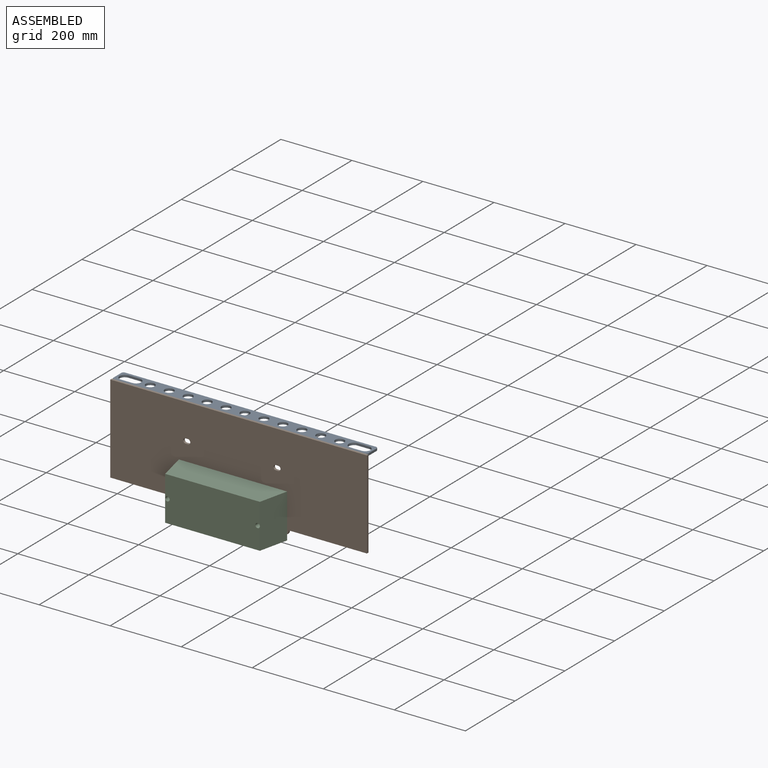
[diagram: assembled view]
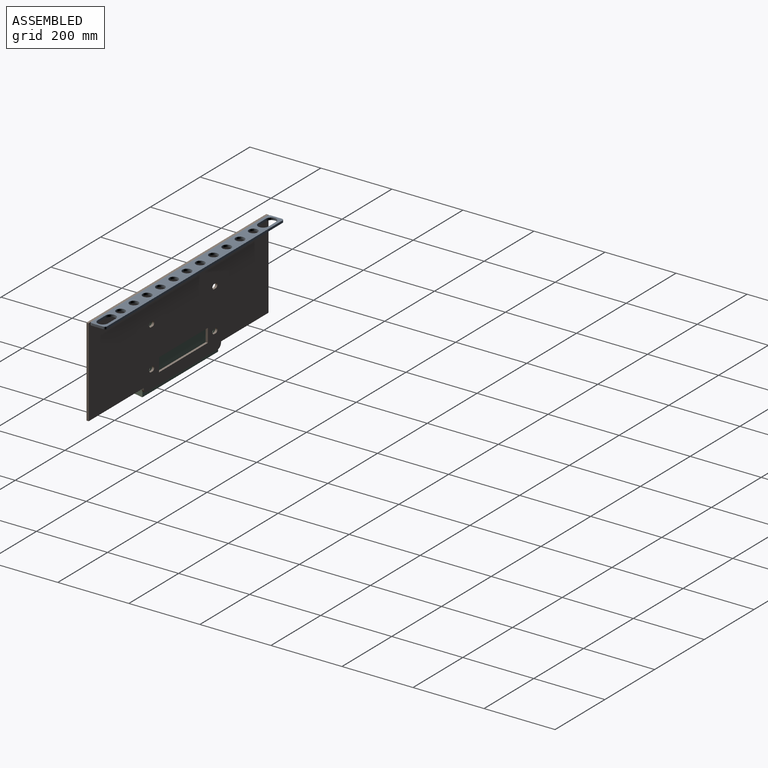
[diagram: assembled view, second angle]
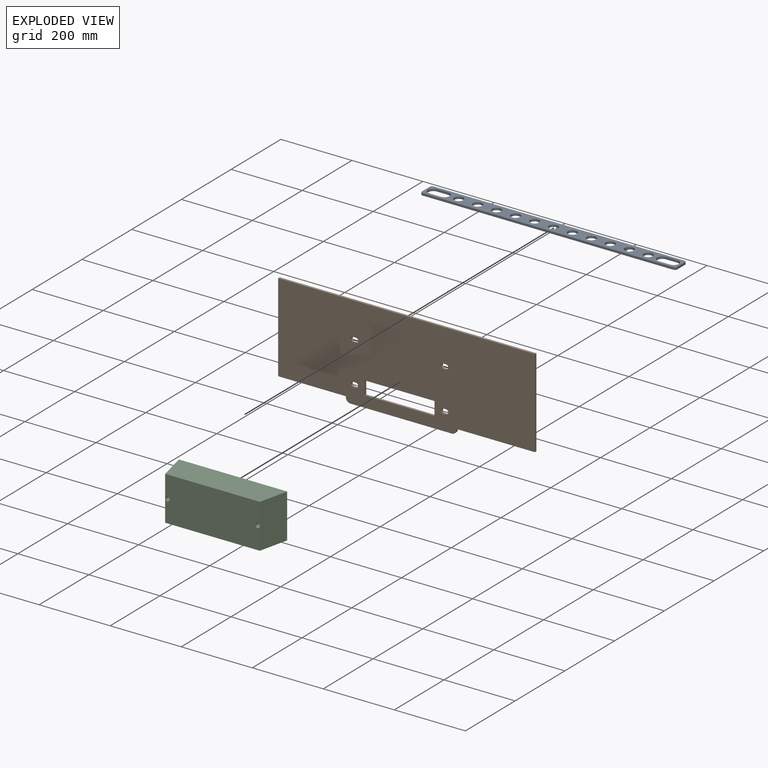
[diagram: exploded view]
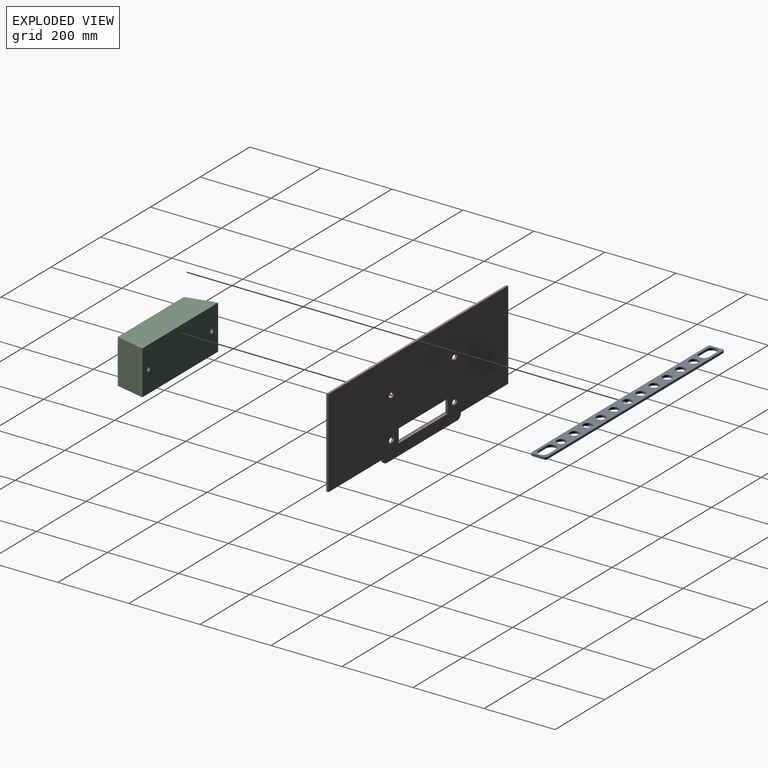
[diagram: exploded view, second angle]
ASSEMBLY  parts=3 mates=6
PART A: 29 faces, bbox 718.8x44.5x6.4 mm
  f0: plane 706.12x6.35mm, normal (0,-1,0), area 4483.9mm2, adj f7,f8,f26,f27
  f1: plane 31.75x6.35mm, normal (1,0,0), area 201.6mm2, adj f7,f8,f27,f28
  f2: plane 31.75x6.35mm, normal (0,1,0), area 201.6mm2, adj f3,f5,f7,f8
  f3: cylinder r=14.61mm len=29.21mm, axis (0,0,-1), area 291.4mm2, adj f2,f4,f7,f8
  f4: plane 31.75x6.35mm, normal (0,-1,0), area 201.6mm2, adj f3,f5,f7,f8
  f5: cylinder r=14.61mm len=29.21mm, axis (0,0,-1), area 291.4mm2, adj f2,f4,f7,f8
  f6: plane 706.12x6.35mm, normal (0,1,0), area 4483.9mm2, adj f7,f8,f25,f28
  f7: plane 718.82x44.45mm, normal (0,0,1), area 23148.1mm2, adj f0,f1,f2,f3,f4,f5,f6,f9
  f8: plane 718.82x44.45mm, normal (0,0,-1), area 23148.1mm2, adj f0,f1,f2,f3,f4,f5,f6,f9
  f9: cylinder r=12.7mm len=25.4mm, axis (0,0,1), area 506.7mm2, adj f7,f8
  f10: cylinder r=12.7mm len=25.4mm, axis (0,0,1), area 506.7mm2, adj f7,f8
  f11: cylinder r=12.7mm len=25.4mm, axis (0,0,1), area 506.7mm2, adj f7,f8
  f12: cylinder r=12.7mm len=25.4mm, axis (0,0,1), area 506.7mm2, adj f7,f8
  f13: cylinder r=12.7mm len=25.4mm, axis (0,0,1), area 506.7mm2, adj f7,f8
  f14: cylinder r=12.7mm len=25.4mm, axis (0,0,1), area 506.7mm2, adj f7,f8
  f15: plane 31.75x6.35mm, normal (-1,0,0), area 201.6mm2, adj f7,f8,f25,f26
  f16: plane 31.75x6.35mm, normal (0,1,0), area 201.6mm2, adj f7,f8,f17,f19
  f17: cylinder r=14.61mm len=29.21mm, axis (0,0,-1), area 291.4mm2, adj f7,f8,f16,f18
  f18: plane 31.75x6.35mm, normal (0,-1,0), area 201.6mm2, adj f7,f8,f17,f19
  f19: cylinder r=14.61mm len=29.21mm, axis (0,0,-1), area 291.4mm2, adj f7,f8,f16,f18
  f20: cylinder r=12.7mm len=25.4mm, axis (0,0,1), area 506.7mm2, adj f7,f8
  f21: cylinder r=12.7mm len=25.4mm, axis (0,0,1), area 506.7mm2, adj f7,f8
  f22: cylinder r=12.7mm len=25.4mm, axis (0,0,1), area 506.7mm2, adj f7,f8
  f23: cylinder r=12.7mm len=25.4mm, axis (0,0,1), area 506.7mm2, adj f7,f8
  f24: cylinder r=12.7mm len=25.4mm, axis (0,0,1), area 506.7mm2, adj f7,f8
  f25: cylinder r=6.35mm len=6.35mm, axis (0,0,-1), area 63.3mm2, adj f6,f7,f8,f15
  f26: cylinder r=6.35mm len=6.35mm, axis (0,0,1), area 63.3mm2, adj f0,f7,f8,f15
  f27: cylinder r=6.35mm len=6.35mm, axis (0,0,1), area 63.3mm2, adj f0,f1,f7,f8
  f28: cylinder r=6.35mm len=6.35mm, axis (0,0,-1), area 63.3mm2, adj f1,f6,f7,f8
PART B: 32 faces, bbox 722.6x6.4x264.7 mm
  f0: plane 220.98x6.35mm, normal (0,0,-1), area 1403.2mm2, adj f1,f2,f21,f29
  f1: plane 722.63x264.67mm, normal (0,-1,0), area 176519.9mm2, adj f0,f3,f4,f5,f6,f7,f8,f9
  f2: plane 722.63x264.67mm, normal (0,1,0), area 176519.9mm2, adj f0,f3,f4,f5,f6,f7,f8,f9
  f3: plane 249.43x6.35mm, normal (-1,0,0), area 1583.9mm2, adj f1,f2,f4,f26
  f4: plane 190.5x6.35mm, normal (0,0,-1), area 1209.7mm2, adj f1,f2,f3,f27
  f5: cylinder r=6.6mm len=13.21mm, axis (0,1,0), area 131.7mm2, adj f1,f2,f6,f17
  f6: plane 6.6x6.35mm, normal (0,0,1), area 41.9mm2, adj f1,f2,f5,f7
  f7: cylinder r=6.6mm len=13.21mm, axis (0,1,0), area 131.7mm2, adj f1,f2,f6,f17
  f8: cylinder r=6.6mm len=13.21mm, axis (0,1,0), area 131.7mm2, adj f1,f2,f9,f18
  f9: plane 6.6x6.35mm, normal (0,0,1), area 41.9mm2, adj f1,f2,f8,f10
  f10: cylinder r=6.6mm len=13.21mm, axis (0,1,0), area 131.7mm2, adj f1,f2,f9,f18
  f11: cylinder r=6.6mm len=13.21mm, axis (0,1,0), area 131.7mm2, adj f1,f2,f12,f19
  f12: plane 6.6x6.35mm, normal (0,0,1), area 41.9mm2, adj f1,f2,f11,f13
  f13: cylinder r=6.6mm len=13.21mm, axis (0,1,0), area 131.7mm2, adj f1,f2,f12,f19
  f14: cylinder r=6.6mm len=13.21mm, axis (0,1,0), area 131.7mm2, adj f1,f2,f15,f20
  f15: plane 6.6x6.35mm, normal (0,0,1), area 41.9mm2, adj f1,f2,f14,f16
  f16: cylinder r=6.6mm len=13.21mm, axis (0,1,0), area 131.7mm2, adj f1,f2,f15,f20
  f17: plane 6.6x6.35mm, normal (0,0,-1), area 41.9mm2, adj f1,f2,f5,f7
  f18: plane 6.6x6.35mm, normal (0,0,-1), area 41.9mm2, adj f1,f2,f8,f10
  f19: plane 6.6x6.35mm, normal (0,0,-1), area 41.9mm2, adj f1,f2,f11,f13
  f20: plane 6.6x6.35mm, normal (0,0,-1), area 41.9mm2, adj f1,f2,f14,f16
  f21: plane 249.43x6.35mm, normal (1,0,0), area 1583.9mm2, adj f0,f1,f2,f26
  f22: plane 196.85x6.35mm, normal (0,0,-1), area 1250mm2, adj f1,f2,f23,f25
  f23: plane 38.1x6.35mm, normal (1,0,0), area 241.9mm2, adj f1,f2,f22,f24
  f24: plane 196.85x6.35mm, normal (0,0,1), area 1250mm2, adj f1,f2,f23,f25
  f25: plane 38.1x6.35mm, normal (-1,0,0), area 241.9mm2, adj f1,f2,f22,f24
  f26: plane 722.63x6.35mm, normal (0,0,1), area 4588.7mm2, adj f1,f2,f3,f21
  f27: plane 6.35x2.54mm, normal (-1,0,0), area 16.1mm2, adj f1,f2,f4,f30
  f28: plane 285.75x6.35mm, normal (0,0,-1), area 1814.5mm2, adj f1,f2,f30,f31
  f29: plane 6.35x2.54mm, normal (1,0,0), area 16.1mm2, adj f0,f1,f2,f31
  f30: cylinder r=12.7mm len=12.7mm, axis (0,-1,0), area 126.7mm2, adj f1,f2,f27,f28
  f31: cylinder r=12.7mm len=12.7mm, axis (0,1,0), area 126.7mm2, adj f1,f2,f28,f29
PART C: 8 faces, bbox 304.8x124.5x82.6 mm
  f0: plane 266.7x124.46mm, normal (0,0,1), area 32940.1mm2, adj f2,f3,f4,f5,f6,f7
  f1: plane 304.8x124.46mm, normal (0,0,-1), area 37682.1mm2, adj f2,f3,f4,f5,f6,f7
  f2: plane 124.46x82.55mm, normal (0.97,0,0.22), area 10544.2mm2, adj f0,f1,f3,f4
  f3: plane 304.8x82.55mm, normal (0,-1,0), area 23588.7mm2, adj f0,f1,f2,f5
  f4: plane 304.8x82.55mm, normal (0,1,0), area 23588.7mm2, adj f0,f1,f2,f5
  f5: plane 124.46x82.55mm, normal (-0.97,0,0.22), area 10544.2mm2, adj f0,f1,f3,f4
  f6: cylinder r=6.35mm len=82.55mm, axis (0,0,-1), area 3293.6mm2, adj f0,f1
  f7: cylinder r=6.35mm len=82.55mm, axis (0,0,-1), area 3293.6mm2, adj f0,f1
PLACE A t=(-56.93,23.61,179.53)mm
PLACE B t=(-416.34,1.38,-63.54)mm fixed
PLACE C rot(axis=(1,0,0),90deg) t=(-70.64,-4.97,-27.98)mm
MATE cylindrical C.f7 <-> B.f14  axis (0,-1,0) through (56.36,-87.52,-27.98)mm
MATE planar A.f0 <-> B.f2  axis (0,-1,0) through (-56.93,1.38,182.71)mm
MATE planar A.f9 <-> B.f26  axis (0,0,1) through (-56.93,23.61,185.88)mm
MATE planar A.f15 <-> B.f3  axis (-1,0,0) through (-416.34,23.61,182.71)mm
MATE planar C.f1 <-> B.f1  axis (0,1,0) through (-70.64,-4.97,-27.98)mm
MATE cylindrical C.f6 <-> B.f8  axis (0,-1,0) through (-197.64,-87.52,-27.98)mm
